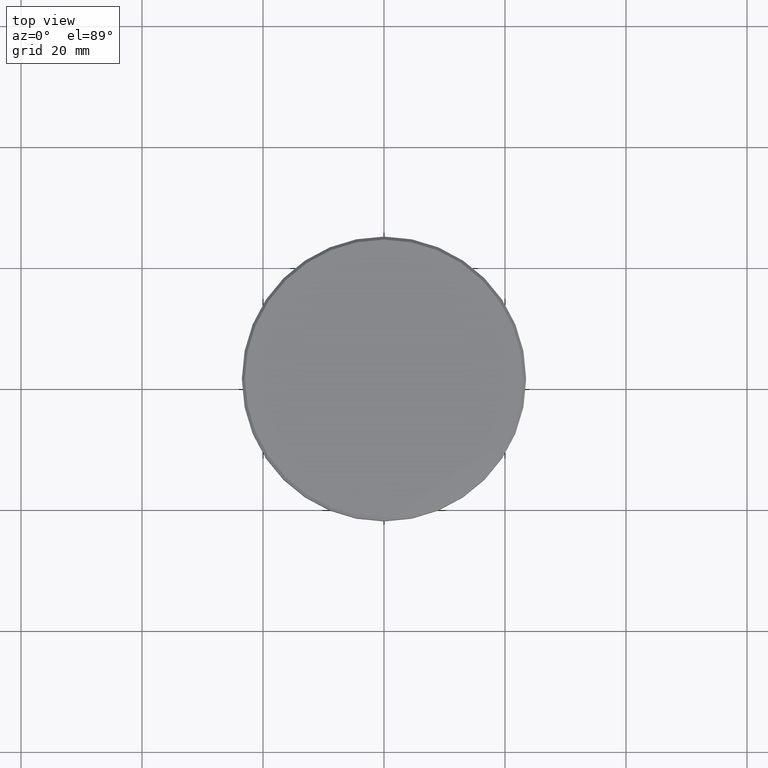
[diagram: clean part render]
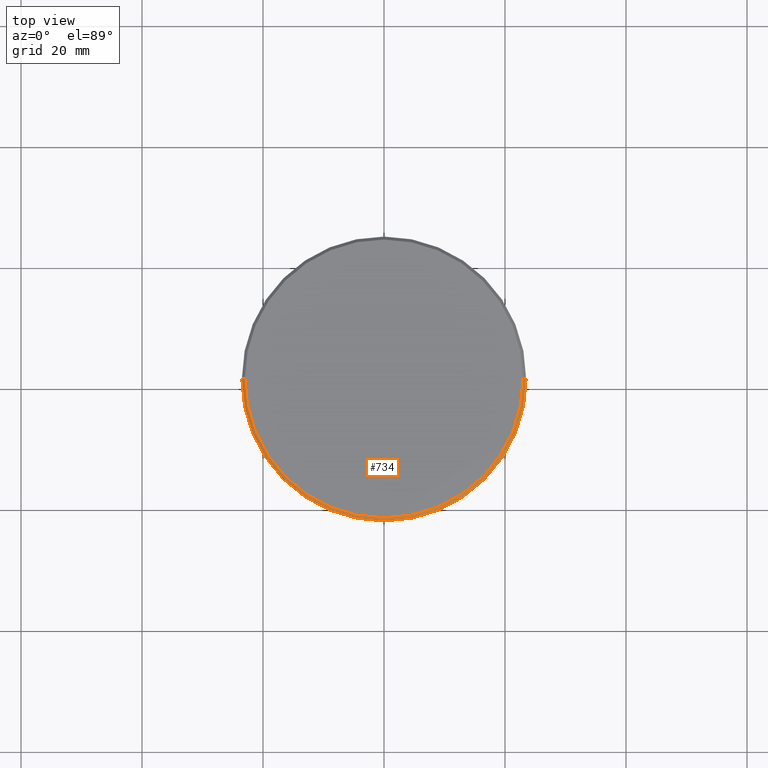
[diagram: same view with one face highlighted and labeled with its STEP entity id]
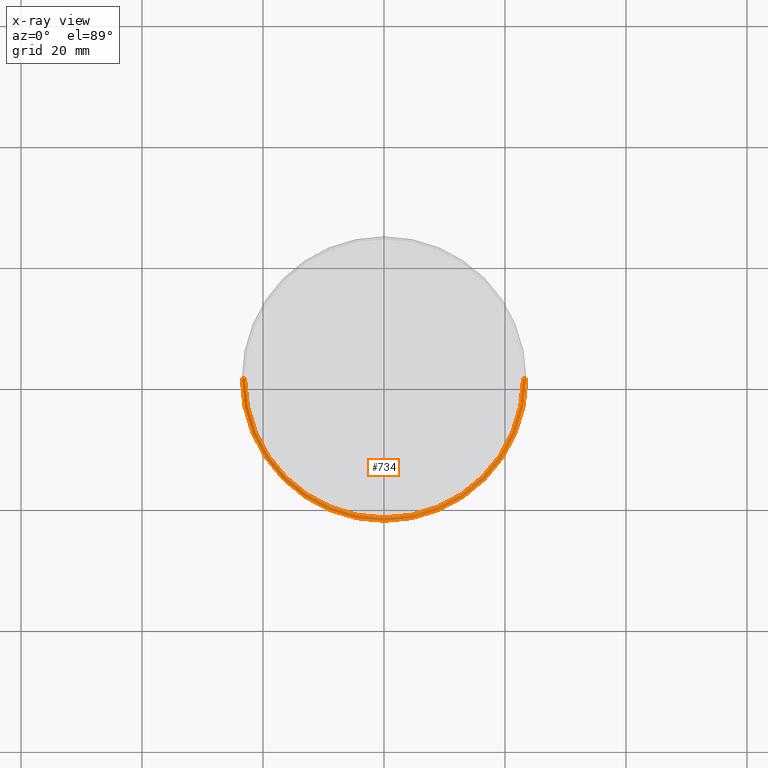
[diagram: x-ray of the same camera — body ghosted, the highlighted face saturated]
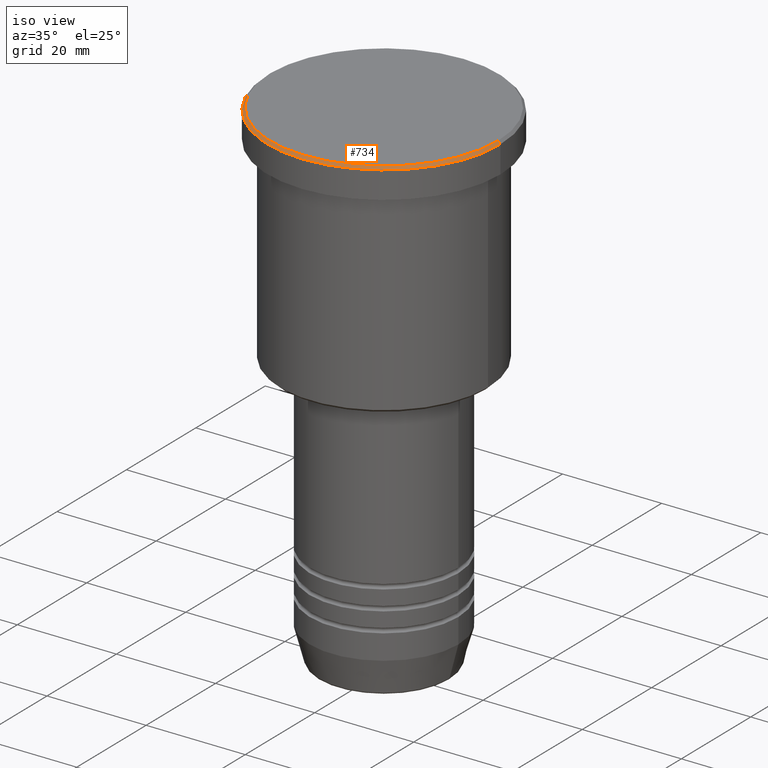
[diagram: same view with one face highlighted and labeled with its STEP entity id]
A machine part, top view. The second image highlights one B-rep face of the part: STEP entity #734.
The next image is the same camera in x-ray: the body ghosted, the highlighted face saturated — about 0% of this face is hidden behind the body in this view.
A second angle (iso view) of the same face is appended — the face is thin or edge-on in the first view.
In plain terms, the highlighted conical surface has half-angle 45 deg.
Its self-contained STEP definition (entity closure, byte-faithful):
#9 = AXIS2_PLACEMENT_3D ( 'NONE', #1155, #341, #420 ) ;
#21 = LINE ( 'NONE', #935, #344 ) ;
#67 = VECTOR ( 'NONE', #408, 1000.000000000000000 ) ;
#96 = EDGE_LOOP ( 'NONE', ( #287, #389, #133, #842 ) ) ;
#124 = CARTESIAN_POINT ( 'NONE',  ( 22.99999999999998224, 2.847303808017595350E-15, 0.000000000000000000 ) ) ;
#133 = ORIENTED_EDGE ( 'NONE', *, *, #234, .T. ) ;
#169 = EDGE_CURVE ( 'NONE', #561, #488, #661, .T. ) ;
#234 = EDGE_CURVE ( 'NONE', #509, #1102, #21, .T. ) ;
#239 = CARTESIAN_POINT ( 'NONE',  ( 0.000000000000000000, 0.000000000000000000, -0.5000000000000281997 ) ) ;
#253 = DIRECTION ( 'NONE',  ( 0.000000000000000000, 0.000000000000000000, -1.000000000000000000 ) ) ;
#269 = DIRECTION ( 'NONE',  ( -1.000000000000000000, 0.000000000000000000, 0.000000000000000000 ) ) ;
#287 = ORIENTED_EDGE ( 'NONE', *, *, #169, .F. ) ;
#341 = DIRECTION ( 'NONE',  ( -0.000000000000000000, -0.000000000000000000, 1.000000000000000000 ) ) ;
#342 = EDGE_CURVE ( 'NONE', #488, #1102, #985, .T. ) ;
#344 = VECTOR ( 'NONE', #391, 1000.000000000000000 ) ;
#389 = ORIENTED_EDGE ( 'NONE', *, *, #719, .F. ) ;
#391 = DIRECTION ( 'NONE',  ( -0.7071067811865401342, 0.000000000000000000, -0.7071067811865549002 ) ) ;
#408 = DIRECTION ( 'NONE',  ( 0.7071067811865401342, 8.659560562354842879E-17, -0.7071067811865549002 ) ) ;
#420 = DIRECTION ( 'NONE',  ( 1.000000000000000000, 0.000000000000000000, 0.000000000000000000 ) ) ;
#474 = CARTESIAN_POINT ( 'NONE',  ( -22.99999999999998224, 0.000000000000000000, 0.000000000000000000 ) ) ;
#488 = VERTEX_POINT ( 'NONE', #716 ) ;
#500 = CIRCLE ( 'NONE', #9, 22.99999999999998224 ) ;
#509 = VERTEX_POINT ( 'NONE', #474 ) ;
#561 = VERTEX_POINT ( 'NONE', #124 ) ;
#603 = DIRECTION ( 'NONE',  ( 1.000000000000000000, 0.000000000000000000, 0.000000000000000000 ) ) ;
#640 = AXIS2_PLACEMENT_3D ( 'NONE', #641, #1085, #269 ) ;
#641 = CARTESIAN_POINT ( 'NONE',  ( 0.000000000000000000, 0.000000000000000000, 0.000000000000000000 ) ) ;
#661 = LINE ( 'NONE', #850, #67 ) ;
#713 = FACE_OUTER_BOUND ( 'NONE', #96, .T. ) ;
#716 = CARTESIAN_POINT ( 'NONE',  ( 23.50000000000000000, 0.000000000000000000, -0.5000000000000281997 ) ) ;
#719 = EDGE_CURVE ( 'NONE', #509, #561, #500, .T. ) ;
#734 = ADVANCED_FACE ( 'NONE', ( #713 ), #1162, .T. ) ;
#842 = ORIENTED_EDGE ( 'NONE', *, *, #342, .F. ) ;
#850 = CARTESIAN_POINT ( 'NONE',  ( 22.99999999999998224, 2.816687638038910380E-15, 0.000000000000000000 ) ) ;
#935 = CARTESIAN_POINT ( 'NONE',  ( -22.99999999999998224, 0.000000000000000000, 0.000000000000000000 ) ) ;
#985 = CIRCLE ( 'NONE', #1116, 23.50000000000000000 ) ;
#1085 = DIRECTION ( 'NONE',  ( 0.000000000000000000, 0.000000000000000000, -1.000000000000000000 ) ) ;
#1102 = VERTEX_POINT ( 'NONE', #1132 ) ;
#1116 = AXIS2_PLACEMENT_3D ( 'NONE', #239, #253, #603 ) ;
#1132 = CARTESIAN_POINT ( 'NONE',  ( -23.50000000000000000, 2.877919977996280320E-15, -0.5000000000000281997 ) ) ;
#1155 = CARTESIAN_POINT ( 'NONE',  ( 0.000000000000000000, 0.000000000000000000, 0.000000000000000000 ) ) ;
#1162 = CONICAL_SURFACE ( 'NONE', #640, 22.99999999999998224, 0.7853981633974378429 ) ;